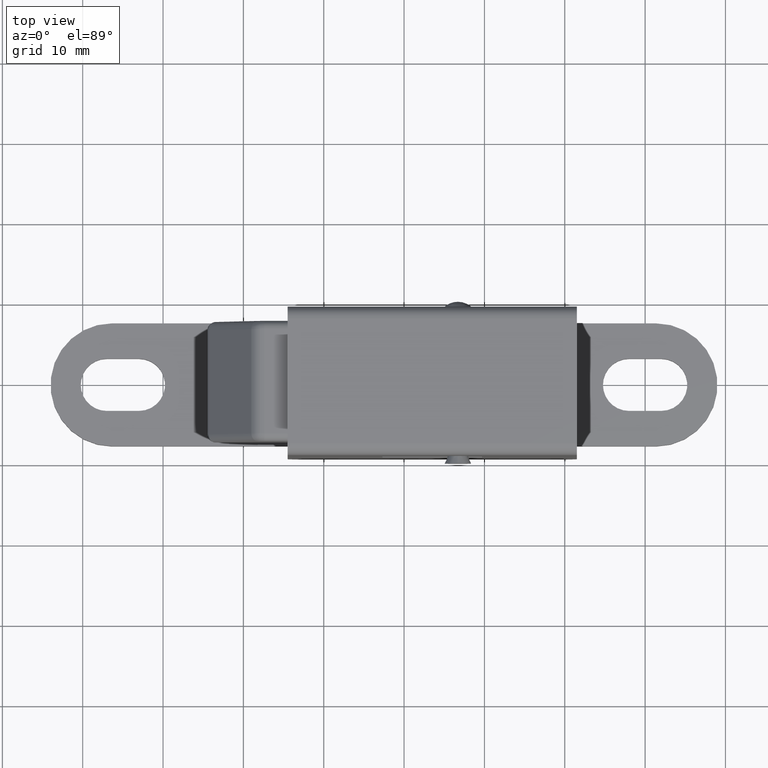
[diagram: clean part render]
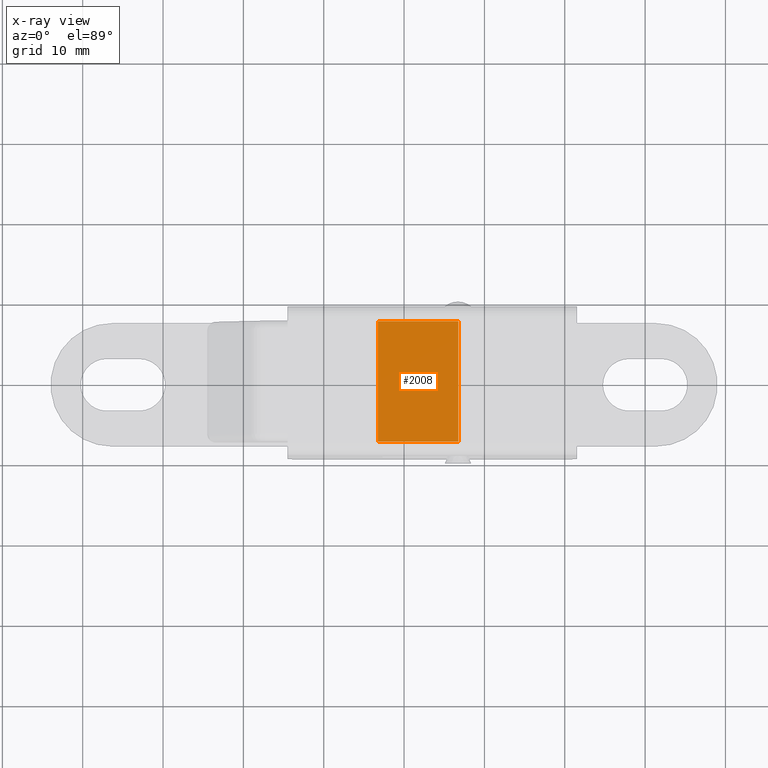
[diagram: x-ray — body ghosted, one internal face saturated and labeled with its STEP entity id]
A machine part, top view, then the same camera in x-ray: the body is ghosted and one INTERNAL B-rep face — a face not visible from any outside direction — is saturated and labeled: STEP entity #2008.
In plain terms, the highlighted planar face has unit normal (0, 0, 1).
Its self-contained STEP definition (entity closure, byte-faithful):
#57 = VERTEX_POINT ( 'NONE', #1378 ) ;
#221 = CARTESIAN_POINT ( 'NONE',  ( -10.00000000000000200, -1.350000000000000100, -7.499999999999975100 ) ) ;
#368 = ORIENTED_EDGE ( 'NONE', *, *, #5366, .F. ) ;
#444 = ORIENTED_EDGE ( 'NONE', *, *, #1905, .T. ) ;
#575 = VECTOR ( 'NONE', #4174, 1000.000000000000000 ) ;
#847 = DIRECTION ( 'NONE',  ( 1.000000000000000000, -0.0000000000000000000, 0.0000000000000000000 ) ) ;
#862 = VECTOR ( 'NONE', #2393, 1000.000000000000000 ) ;
#1113 = CARTESIAN_POINT ( 'NONE',  ( 6.050000000009999800, -1.350000000000000100, -7.500000000000000000 ) ) ;
#1378 = CARTESIAN_POINT ( 'NONE',  ( 0.0000000000000000000, -1.350000000000000100, 7.499999999999975100 ) ) ;
#1413 = VECTOR ( 'NONE', #847, 1000.000000000000000 ) ;
#1472 = ORIENTED_EDGE ( 'NONE', *, *, #3877, .F. ) ;
#1686 = ORIENTED_EDGE ( 'NONE', *, *, #5497, .F. ) ;
#1905 = EDGE_CURVE ( 'NONE', #4639, #57, #3805, .T. ) ;
#1952 = CARTESIAN_POINT ( 'NONE',  ( 0.0000000000000000000, -1.350000000000000100, 9.000000000000001800 ) ) ;
#2008 = ADVANCED_FACE ( 'NONE', ( #2335 ), #3683, .F. ) ;
#2335 = FACE_OUTER_BOUND ( 'NONE', #3392, .T. ) ;
#2393 = DIRECTION ( 'NONE',  ( 0.0000000000000000000, -0.0000000000000000000, -1.000000000000000000 ) ) ;
#3065 = CARTESIAN_POINT ( 'NONE',  ( 6.050000000009999800, -1.350000000000000100, 7.500000000000000000 ) ) ;
#3392 = EDGE_LOOP ( 'NONE', ( #368, #1686, #1472, #444 ) ) ;
#3630 = VERTEX_POINT ( 'NONE', #5343 ) ;
#3683 = PLANE ( 'NONE',  #4589 ) ;
#3717 = VECTOR ( 'NONE', #5094, 1000.000000000000000 ) ;
#3805 = LINE ( 'NONE', #3065, #1413 ) ;
#3877 = EDGE_CURVE ( 'NONE', #4639, #4914, #5433, .T. ) ;
#4174 = DIRECTION ( 'NONE',  ( -0.0000000000000000000, 0.0000000000000000000, 1.000000000000000000 ) ) ;
#4251 = LINE ( 'NONE', #1952, #575 ) ;
#4262 = DIRECTION ( 'NONE',  ( 0.0000000000000000000, -0.0000000000000000000, -1.000000000000000000 ) ) ;
#4589 = AXIS2_PLACEMENT_3D ( 'NONE', #5569, #5113, #4262 ) ;
#4639 = VERTEX_POINT ( 'NONE', #4830 ) ;
#4830 = CARTESIAN_POINT ( 'NONE',  ( -10.00000000000000200, -1.350000000000000100, 7.499999999999975100 ) ) ;
#4851 = LINE ( 'NONE', #1113, #3717 ) ;
#4914 = VERTEX_POINT ( 'NONE', #221 ) ;
#5094 = DIRECTION ( 'NONE',  ( 1.000000000000000000, -0.0000000000000000000, 0.0000000000000000000 ) ) ;
#5113 = DIRECTION ( 'NONE',  ( 0.0000000000000000000, -1.000000000000000000, 0.0000000000000000000 ) ) ;
#5343 = CARTESIAN_POINT ( 'NONE',  ( 0.0000000000000000000, -1.350000000000000100, -7.499999999999975100 ) ) ;
#5366 = EDGE_CURVE ( 'NONE', #3630, #57, #4251, .T. ) ;
#5433 = LINE ( 'NONE', #5482, #862 ) ;
#5482 = CARTESIAN_POINT ( 'NONE',  ( -10.00000000000000000, -1.350000000000000100, 9.000000000000001800 ) ) ;
#5497 = EDGE_CURVE ( 'NONE', #4914, #3630, #4851, .T. ) ;
#5569 = CARTESIAN_POINT ( 'NONE',  ( -11.00000000000000000, -1.350000000000000100, 9.000000000000001800 ) ) ;